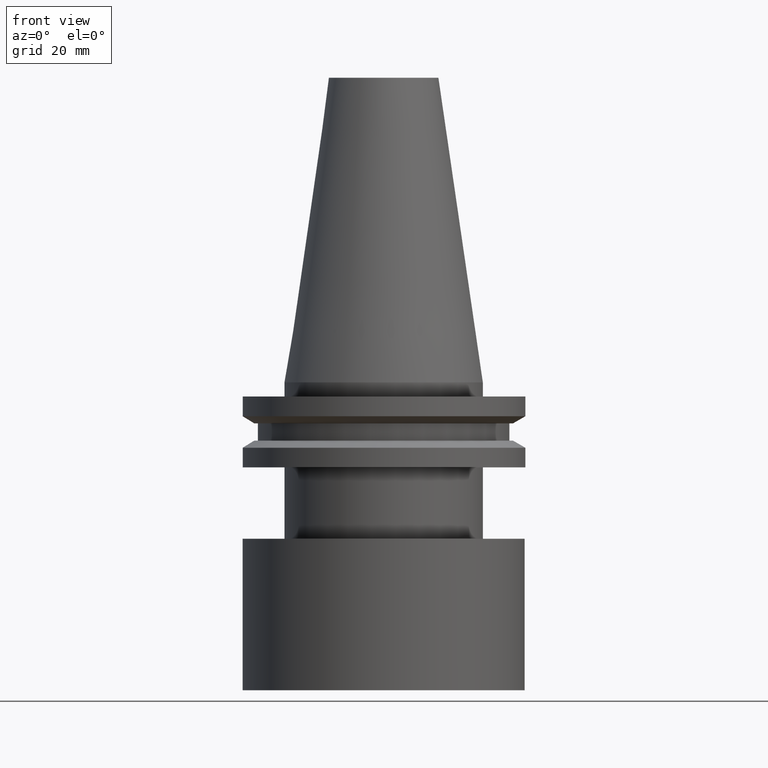
[diagram: clean part render]
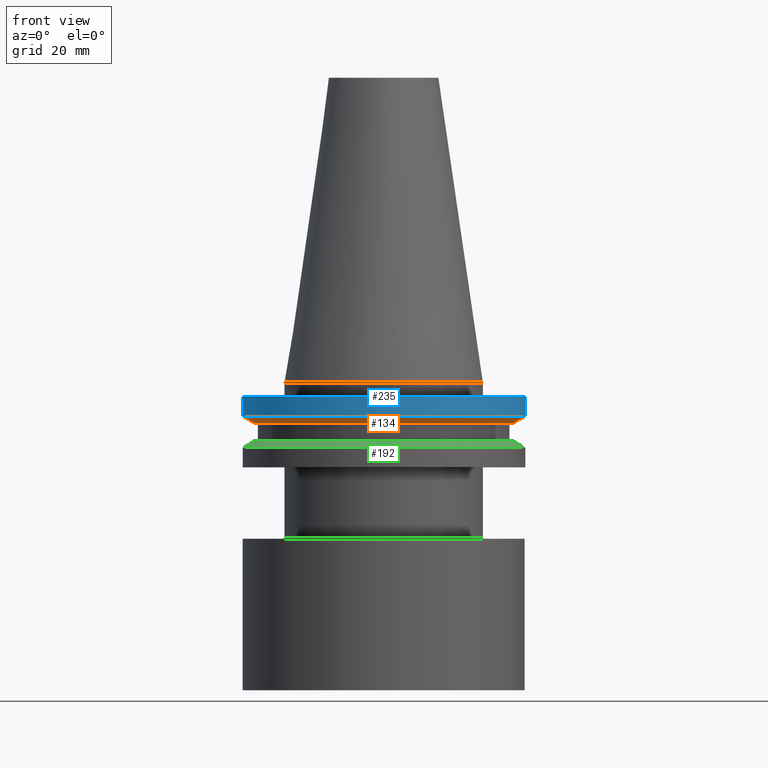
[diagram: same view with three faces highlighted in distinct colors, each labeled with its STEP entity id]
A machine part, front view with three faces highlighted in distinct colors.
Their STEP definitions:

[orange] entity #134 — the highlighted conical surface has half-angle 60 deg.
#34 = FACE_OUTER_BOUND ( 'NONE', #122, .T. ) ;
#47 = EDGE_LOOP ( 'NONE', ( #74 ) ) ;
#49 = CARTESIAN_POINT ( 'NONE',  ( 28.97919780457007732, 0.000000000000000000, -9.205000000000005400 ) ) ;
#59 = AXIS2_PLACEMENT_3D ( 'NONE', #206, #107, #265 ) ;
#63 = EDGE_CURVE ( 'NONE', #185, #185, #136, .T. ) ;
#74 = ORIENTED_EDGE ( 'NONE', *, *, #202, .T. ) ;
#107 = DIRECTION ( 'NONE',  ( -0.000000000000000000, -0.000000000000000000, 1.000000000000000000 ) ) ;
#108 = DIRECTION ( 'NONE',  ( 1.000000000000000000, 0.000000000000000000, 0.000000000000000000 ) ) ;
#110 = AXIS2_PLACEMENT_3D ( 'NONE', #146, #262, #291 ) ;
#122 = EDGE_LOOP ( 'NONE', ( #161 ) ) ;
#134 = ADVANCED_FACE ( 'NONE', ( #34, #318 ), #297, .T. ) ;
#136 = CIRCLE ( 'NONE', #284, 31.75000000000000000 ) ;
#146 = CARTESIAN_POINT ( 'NONE',  ( 0.000000000000000000, 0.000000000000000000, -9.205000000000005400 ) ) ;
#161 = ORIENTED_EDGE ( 'NONE', *, *, #63, .F. ) ;
#168 = CIRCLE ( 'NONE', #59, 28.97919780457007732 ) ;
#185 = VERTEX_POINT ( 'NONE', #218 ) ;
#202 = EDGE_CURVE ( 'NONE', #332, #332, #168, .T. ) ;
#206 = CARTESIAN_POINT ( 'NONE',  ( 0.000000000000000000, 0.000000000000000000, -9.205000000000005400 ) ) ;
#218 = CARTESIAN_POINT ( 'NONE',  ( 31.75000000000000000, 0.000000000000000000, -7.605276606597335842 ) ) ;
#225 = CARTESIAN_POINT ( 'NONE',  ( 0.000000000000000000, 0.000000000000000000, -7.605276606597335842 ) ) ;
#262 = DIRECTION ( 'NONE',  ( -0.000000000000000000, -0.000000000000000000, 1.000000000000000000 ) ) ;
#265 = DIRECTION ( 'NONE',  ( 1.000000000000000000, 0.000000000000000000, 0.000000000000000000 ) ) ;
#284 = AXIS2_PLACEMENT_3D ( 'NONE', #225, #346, #108 ) ;
#291 = DIRECTION ( 'NONE',  ( 1.000000000000000000, 0.000000000000000000, 0.000000000000000000 ) ) ;
#297 = CONICAL_SURFACE ( 'NONE', #110, 28.97919780457007732, 1.047197551196598297 ) ;
#318 = FACE_BOUND ( 'NONE', #47, .T. ) ;
#332 = VERTEX_POINT ( 'NONE', #49 ) ;
#346 = DIRECTION ( 'NONE',  ( -0.000000000000000000, -0.000000000000000000, 1.000000000000000000 ) ) ;

[blue] entity #235 — the highlighted cylindrical surface (bore or boss wall) has radius 31.75 mm, axis along (-0, -0, 1).
#5 = CARTESIAN_POINT ( 'NONE',  ( 0.000000000000000000, 0.000000000000000000, 68.25000000000000000 ) ) ;
#7 = CARTESIAN_POINT ( 'NONE',  ( 31.75000000000000000, 0.000000000000000000, -3.174999999999997158 ) ) ;
#20 = DIRECTION ( 'NONE',  ( -0.000000000000000000, -0.000000000000000000, 1.000000000000000000 ) ) ;
#22 = EDGE_CURVE ( 'NONE', #123, #123, #208, .T. ) ;
#25 = AXIS2_PLACEMENT_3D ( 'NONE', #75, #20, #137 ) ;
#39 = DIRECTION ( 'NONE',  ( 1.000000000000000000, 0.000000000000000000, 0.000000000000000000 ) ) ;
#63 = EDGE_CURVE ( 'NONE', #185, #185, #136, .T. ) ;
#75 = CARTESIAN_POINT ( 'NONE',  ( 0.000000000000000000, 0.000000000000000000, -3.174999999999997158 ) ) ;
#96 = DIRECTION ( 'NONE',  ( -0.000000000000000000, -0.000000000000000000, 1.000000000000000000 ) ) ;
#108 = DIRECTION ( 'NONE',  ( 1.000000000000000000, 0.000000000000000000, 0.000000000000000000 ) ) ;
#117 = AXIS2_PLACEMENT_3D ( 'NONE', #5, #96, #39 ) ;
#123 = VERTEX_POINT ( 'NONE', #7 ) ;
#136 = CIRCLE ( 'NONE', #284, 31.75000000000000000 ) ;
#137 = DIRECTION ( 'NONE',  ( 1.000000000000000000, 0.000000000000000000, 0.000000000000000000 ) ) ;
#179 = ORIENTED_EDGE ( 'NONE', *, *, #63, .T. ) ;
#185 = VERTEX_POINT ( 'NONE', #218 ) ;
#208 = CIRCLE ( 'NONE', #25, 31.75000000000000000 ) ;
#218 = CARTESIAN_POINT ( 'NONE',  ( 31.75000000000000000, 0.000000000000000000, -7.605276606597335842 ) ) ;
#225 = CARTESIAN_POINT ( 'NONE',  ( 0.000000000000000000, 0.000000000000000000, -7.605276606597335842 ) ) ;
#235 = ADVANCED_FACE ( 'NONE', ( #327, #306 ), #334, .T. ) ;
#284 = AXIS2_PLACEMENT_3D ( 'NONE', #225, #346, #108 ) ;
#306 = FACE_OUTER_BOUND ( 'NONE', #338, .T. ) ;
#309 = ORIENTED_EDGE ( 'NONE', *, *, #22, .F. ) ;
#327 = FACE_OUTER_BOUND ( 'NONE', #394, .T. ) ;
#334 = CYLINDRICAL_SURFACE ( 'NONE', #117, 31.75000000000000000 ) ;
#338 = EDGE_LOOP ( 'NONE', ( #179 ) ) ;
#346 = DIRECTION ( 'NONE',  ( -0.000000000000000000, -0.000000000000000000, 1.000000000000000000 ) ) ;
#394 = EDGE_LOOP ( 'NONE', ( #309 ) ) ;

[green] entity #192 — the highlighted conical surface has half-angle 60 deg.
#41 = ORIENTED_EDGE ( 'NONE', *, *, #116, .F. ) ;
#61 = FACE_BOUND ( 'NONE', #328, .T. ) ;
#68 = CARTESIAN_POINT ( 'NONE',  ( 28.97919780457008088, 0.000000000000000000, -13.05499999999999794 ) ) ;
#79 = CIRCLE ( 'NONE', #245, 28.97919780457008088 ) ;
#85 = CARTESIAN_POINT ( 'NONE',  ( 0.000000000000000000, 0.000000000000000000, -14.65472339340266572 ) ) ;
#91 = EDGE_CURVE ( 'NONE', #365, #365, #353, .T. ) ;
#116 = EDGE_CURVE ( 'NONE', #278, #278, #79, .T. ) ;
#142 = CARTESIAN_POINT ( 'NONE',  ( 0.000000000000000000, 0.000000000000000000, -14.65472339340266572 ) ) ;
#149 = FACE_OUTER_BOUND ( 'NONE', #301, .T. ) ;
#160 = AXIS2_PLACEMENT_3D ( 'NONE', #142, #384, #323 ) ;
#182 = AXIS2_PLACEMENT_3D ( 'NONE', #85, #205, #357 ) ;
#189 = ORIENTED_EDGE ( 'NONE', *, *, #91, .T. ) ;
#192 = ADVANCED_FACE ( 'NONE', ( #61, #149 ), #388, .T. ) ;
#205 = DIRECTION ( 'NONE',  ( -0.000000000000000000, -0.000000000000000000, 1.000000000000000000 ) ) ;
#234 = CARTESIAN_POINT ( 'NONE',  ( 0.000000000000000000, 0.000000000000000000, -13.05499999999999794 ) ) ;
#245 = AXIS2_PLACEMENT_3D ( 'NONE', #234, #389, #321 ) ;
#278 = VERTEX_POINT ( 'NONE', #68 ) ;
#301 = EDGE_LOOP ( 'NONE', ( #189 ) ) ;
#321 = DIRECTION ( 'NONE',  ( 1.000000000000000000, 0.000000000000000000, 0.000000000000000000 ) ) ;
#323 = DIRECTION ( 'NONE',  ( -1.000000000000000000, 0.000000000000000000, 0.000000000000000000 ) ) ;
#328 = EDGE_LOOP ( 'NONE', ( #41 ) ) ;
#339 = CARTESIAN_POINT ( 'NONE',  ( 31.75000000000000000, 0.000000000000000000, -14.65472339340266572 ) ) ;
#353 = CIRCLE ( 'NONE', #182, 31.75000000000000000 ) ;
#357 = DIRECTION ( 'NONE',  ( 1.000000000000000000, 0.000000000000000000, 0.000000000000000000 ) ) ;
#365 = VERTEX_POINT ( 'NONE', #339 ) ;
#384 = DIRECTION ( 'NONE',  ( 0.000000000000000000, 0.000000000000000000, -1.000000000000000000 ) ) ;
#388 = CONICAL_SURFACE ( 'NONE', #160, 31.75000000000000000, 1.047197551196597853 ) ;
#389 = DIRECTION ( 'NONE',  ( -0.000000000000000000, -0.000000000000000000, 1.000000000000000000 ) ) ;